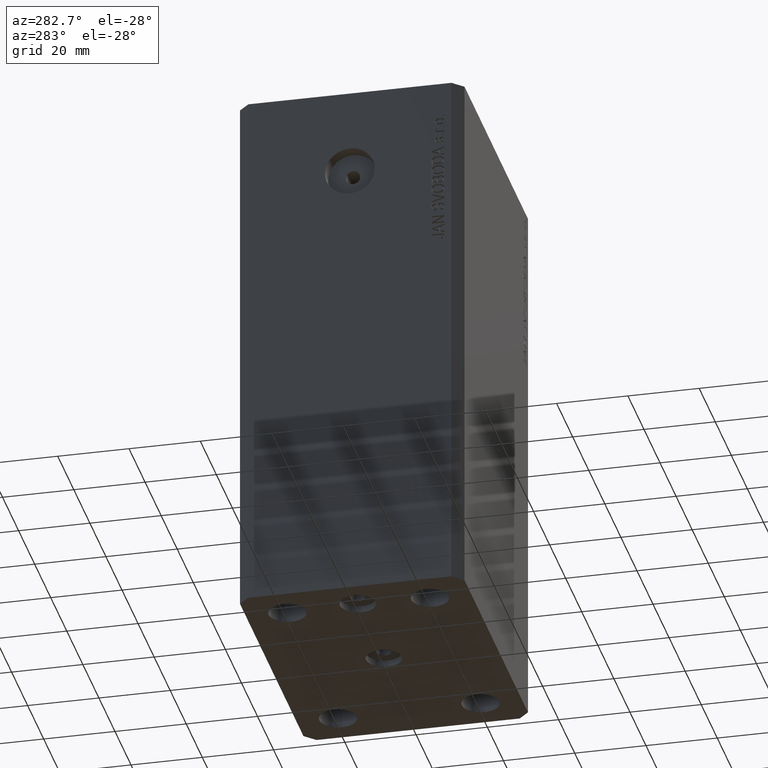
[diagram: clean part render]
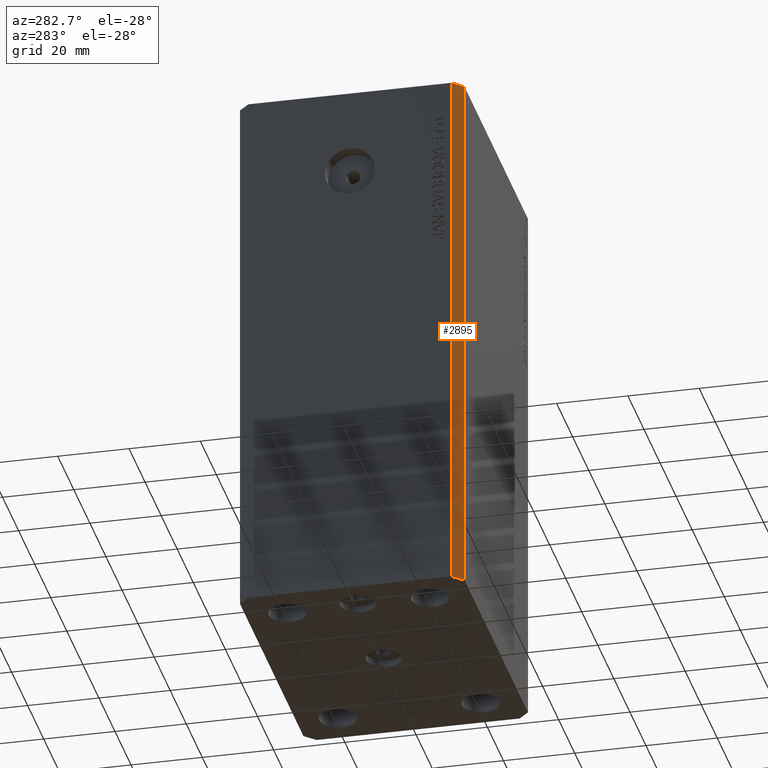
[diagram: same view with one face highlighted and labeled with its STEP entity id]
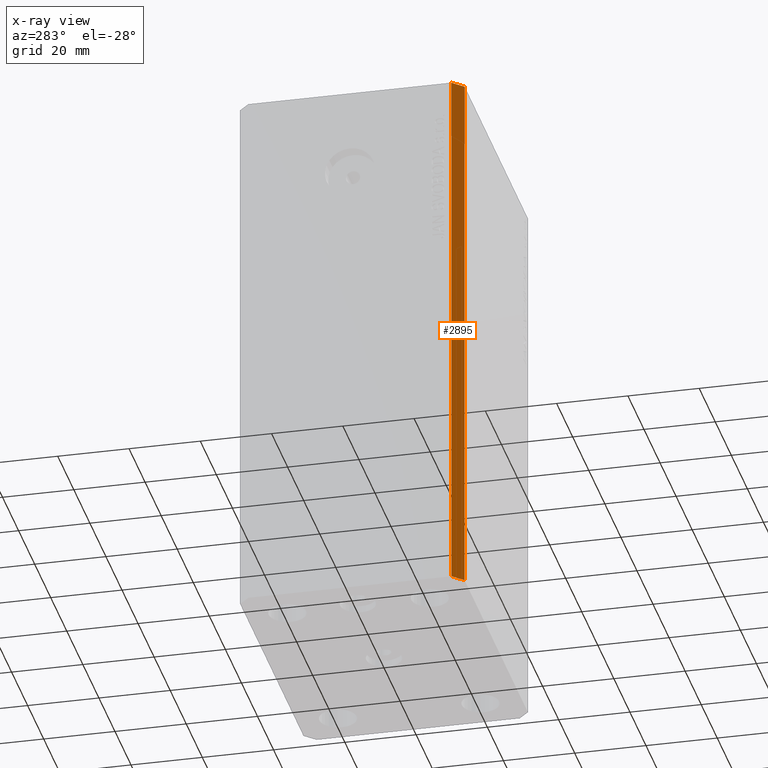
[diagram: x-ray of the same camera — body ghosted, the highlighted face saturated]
A machine part, auxiliary view. The second image highlights one B-rep face of the part: STEP entity #2895.
The next image is the same camera in x-ray: the body ghosted, the highlighted face saturated — about 0% of this face is hidden behind the body in this view.
In plain terms, the highlighted planar face has unit normal (-0.7071, -0.7071, 0).
Its self-contained STEP definition (entity closure, byte-faithful):
#379 = CARTESIAN_POINT ( 'NONE',  ( -42.50000000000000000, -28.50000000000000000, 0.000000000000000000 ) ) ;
#614 = EDGE_CURVE ( 'NONE', #23682, #12398, #17530, .T. ) ;
#2036 = CARTESIAN_POINT ( 'NONE',  ( -39.50000000000000711, -31.50000000000000000, -153.0000000000000000 ) ) ;
#2719 = DIRECTION ( 'NONE',  ( 0.7071067811865471286, -0.7071067811865479058, 0.000000000000000000 ) ) ;
#2895 = ADVANCED_FACE ( 'NONE', ( #39759 ), #25799, .T. ) ;
#7276 = ORIENTED_EDGE ( 'NONE', *, *, #21395, .T. ) ;
#8168 = AXIS2_PLACEMENT_3D ( 'NONE', #8629, #26243, #36393 ) ;
#8629 = CARTESIAN_POINT ( 'NONE',  ( -42.50000000000000000, -28.50000000000000000, -153.0000000000000000 ) ) ;
#12398 = VERTEX_POINT ( 'NONE', #41564 ) ;
#13111 = ORIENTED_EDGE ( 'NONE', *, *, #614, .F. ) ;
#13919 = DIRECTION ( 'NONE',  ( 0.7071067811865471286, -0.7071067811865479058, 0.000000000000000000 ) ) ;
#14077 = CARTESIAN_POINT ( 'NONE',  ( -42.50000000000000000, -28.50000000000000000, 0.000000000000000000 ) ) ;
#14815 = CARTESIAN_POINT ( 'NONE',  ( -42.50000000000000000, -28.50000000000000000, -153.0000000000000000 ) ) ;
#15803 = DIRECTION ( 'NONE',  ( 0.000000000000000000, 0.000000000000000000, 1.000000000000000000 ) ) ;
#15829 = CARTESIAN_POINT ( 'NONE',  ( -42.50000000000000000, -28.50000000000000000, -153.0000000000000000 ) ) ;
#16576 = VECTOR ( 'NONE', #24521, 1000.000000000000000 ) ;
#17530 = LINE ( 'NONE', #379, #28296 ) ;
#21395 = EDGE_CURVE ( 'NONE', #41515, #12398, #28907, .T. ) ;
#23682 = VERTEX_POINT ( 'NONE', #14077 ) ;
#24521 = DIRECTION ( 'NONE',  ( 0.000000000000000000, 0.000000000000000000, 1.000000000000000000 ) ) ;
#24968 = LINE ( 'NONE', #14815, #16576 ) ;
#25799 = PLANE ( 'NONE',  #8168 ) ;
#26243 = DIRECTION ( 'NONE',  ( -0.7071067811865479058, -0.7071067811865471286, 0.000000000000000000 ) ) ;
#27212 = EDGE_CURVE ( 'NONE', #38133, #23682, #24968, .T. ) ;
#28296 = VECTOR ( 'NONE', #13919, 1000.000000000000000 ) ;
#28907 = LINE ( 'NONE', #2036, #32306 ) ;
#31265 = EDGE_LOOP ( 'NONE', ( #13111, #41134, #37416, #7276 ) ) ;
#32306 = VECTOR ( 'NONE', #15803, 1000.000000000000000 ) ;
#35181 = CARTESIAN_POINT ( 'NONE',  ( -39.50000000000000711, -31.50000000000000000, -153.0000000000000000 ) ) ;
#36393 = DIRECTION ( 'NONE',  ( 0.7071067811865471286, -0.7071067811865479058, 0.000000000000000000 ) ) ;
#37010 = EDGE_CURVE ( 'NONE', #38133, #41515, #40161, .T. ) ;
#37416 = ORIENTED_EDGE ( 'NONE', *, *, #37010, .T. ) ;
#37641 = CARTESIAN_POINT ( 'NONE',  ( -42.50000000000000000, -28.50000000000000000, -153.0000000000000000 ) ) ;
#38133 = VERTEX_POINT ( 'NONE', #37641 ) ;
#39759 = FACE_OUTER_BOUND ( 'NONE', #31265, .T. ) ;
#39834 = VECTOR ( 'NONE', #2719, 1000.000000000000000 ) ;
#40161 = LINE ( 'NONE', #15829, #39834 ) ;
#41134 = ORIENTED_EDGE ( 'NONE', *, *, #27212, .F. ) ;
#41515 = VERTEX_POINT ( 'NONE', #35181 ) ;
#41564 = CARTESIAN_POINT ( 'NONE',  ( -39.50000000000000711, -31.50000000000000000, 0.000000000000000000 ) ) ;